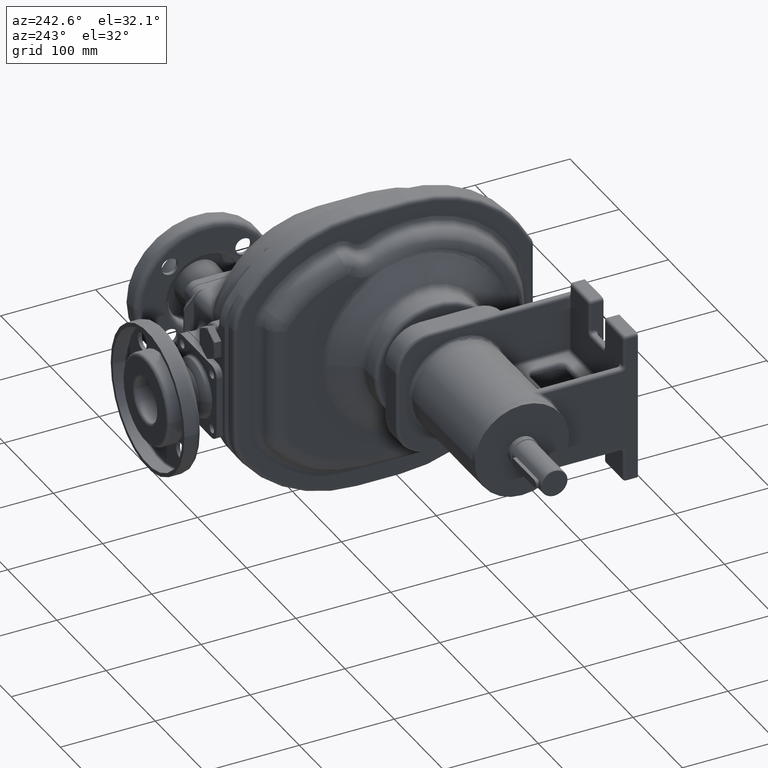
[diagram: clean part render]
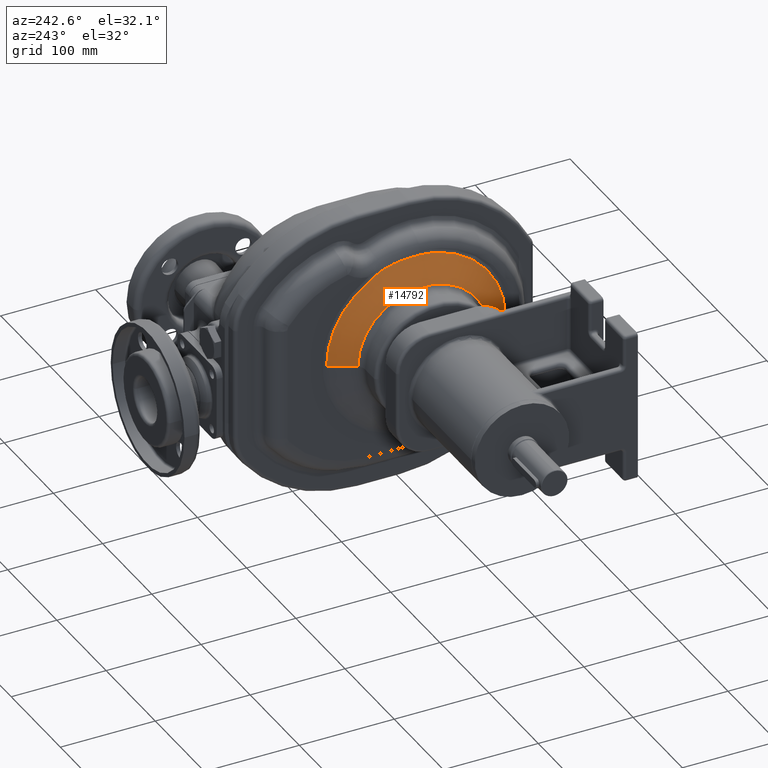
[diagram: same view with one face highlighted and labeled with its STEP entity id]
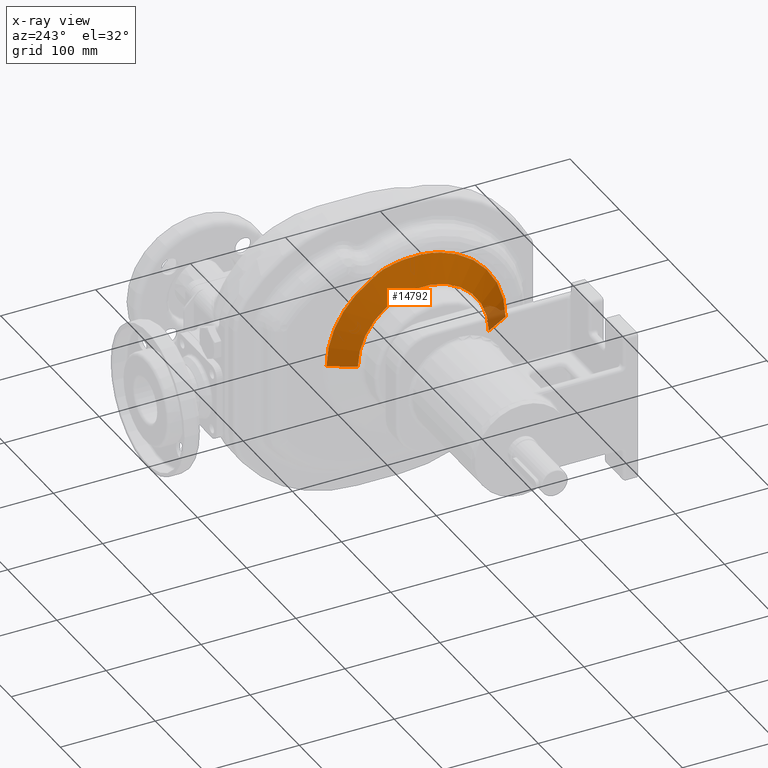
[diagram: x-ray of the same camera — body ghosted, the highlighted face saturated]
A machine part, auxiliary view. The second image highlights one B-rep face of the part: STEP entity #14792.
The next image is the same camera in x-ray: the body ghosted, the highlighted face saturated — about 4% of this face is hidden behind the body in this view.
In plain terms, the highlighted conical surface has half-angle 60 deg.
Its self-contained STEP definition (entity closure, byte-faithful):
#2554=CARTESIAN_POINT('',(-5.857179676972E1,0.E0,0.E0));
#2555=DIRECTION('',(-1.E0,0.E0,0.E0));
#2556=DIRECTION('',(0.E0,-1.E0,0.E0));
#2557=AXIS2_PLACEMENT_3D('',#2554,#2555,#2556);
#2559=DIRECTION('',(5.E-1,-8.660254037844E-1,0.E0));
#2560=VECTOR('',#2559,2.923760430703E1);
#2561=CARTESIAN_POINT('',(-7.319059892324E1,-6.9E1,0.E0));
#2562=LINE('',#2561,#2560);
#2563=CARTESIAN_POINT('',(-7.319059892324E1,0.E0,0.E0));
#2564=DIRECTION('',(-1.E0,0.E0,0.E0));
#2565=DIRECTION('',(0.E0,-1.E0,0.E0));
#2566=AXIS2_PLACEMENT_3D('',#2563,#2564,#2565);
#2568=DIRECTION('',(5.E-1,8.660254037844E-1,0.E0));
#2569=VECTOR('',#2568,2.923760430703E1);
#2570=CARTESIAN_POINT('',(-7.319059892324E1,6.9E1,-1.532106161659E-14));
#2571=LINE('',#2570,#2569);
#2572=CARTESIAN_POINT('',(-5.857179676972E1,0.E0,0.E0));
#2573=DIRECTION('',(-1.E0,0.E0,0.E0));
#2574=DIRECTION('',(0.E0,5.064865958433E-1,8.622478345761E-1));
#2575=AXIS2_PLACEMENT_3D('',#2572,#2573,#2574);
#2577=CARTESIAN_POINT('',(-5.797321898222E1,3.409199745411E1,8.905473399093E1));
#2578=CARTESIAN_POINT('',(-5.796771888854E1,3.432222820155E1,8.897679753114E1));
#2579=CARTESIAN_POINT('',(-5.795974008885E1,3.477692185466E1,8.881552792429E1));
#2580=CARTESIAN_POINT('',(-5.795684807256E1,3.543452921726E1,8.856058687747E1));
#2581=CARTESIAN_POINT('',(-5.796274317931E1,3.608816287932E1,8.828525656342E1));
#2582=CARTESIAN_POINT('',(-5.797781789658E1,3.675363439215E1,8.798208876978E1));
#2583=CARTESIAN_POINT('',(-5.800304354998E1,3.745070367238E1,8.764029792535E1));
#2584=CARTESIAN_POINT('',(-5.804040749042E1,3.820855620156E1,8.724226016483E1));
#2585=CARTESIAN_POINT('',(-5.809341975599E1,3.906807181628E1,8.676058753291E1));
#2586=CARTESIAN_POINT('',(-5.816341384515E1,4.003990317231E1,8.618340318497E1));
#2587=CARTESIAN_POINT('',(-5.824829408098E1,4.112792590012E1,8.550704529096E1));
#2588=CARTESIAN_POINT('',(-5.834273571739E1,4.233580305806E1,8.473397603267E1));
#2589=CARTESIAN_POINT('',(-5.843763359571E1,4.369350020092E1,8.385649983954E1));
#2590=CARTESIAN_POINT('',(-5.850229460424E1,4.486442437460E1,8.310721311772E1));
#2591=CARTESIAN_POINT('',(-5.854388029386E1,4.590485871922E1,8.245413080014E1));
#2592=CARTESIAN_POINT('',(-5.856700564766E1,4.686664608387E1,8.186476082275E1));
#2593=CARTESIAN_POINT('',(-5.857179671291E1,4.747659370011E1,8.150121928430E1));
#2594=CARTESIAN_POINT('',(-5.857179676972E1,4.777207305346E1,8.132765384438E1));
#2596=CARTESIAN_POINT('',(-5.845427179862E1,-4.317303522948E0,
9.442542130497E1));
#2597=CARTESIAN_POINT('',(-5.845036776947E1,-3.617483892196E0,
9.446418735955E1));
#2598=CARTESIAN_POINT('',(-5.844222572822E1,-2.215500715743E0,
9.452679870517E1));
#2599=CARTESIAN_POINT('',(-5.842893827837E1,-1.065056974506E-1,
9.457574526170E1));
#2600=CARTESIAN_POINT('',(-5.841449638263E1,2.007879713936E0,9.457954344817E1));
#2601=CARTESIAN_POINT('',(-5.839881398877E1,4.127006342407E0,9.453801605841E1));
#2602=CARTESIAN_POINT('',(-5.838179759509E1,6.250313193343E0,9.445098599826E1));
#2603=CARTESIAN_POINT('',(-5.836334594467E1,8.377238677385E0,9.431827326783E1));
#2604=CARTESIAN_POINT('',(-5.834334847377E1,1.050728661147E1,9.413969057143E1));
#2605=CARTESIAN_POINT('',(-5.832168411407E1,1.264000972944E1,9.391503899489E1));
#2606=CARTESIAN_POINT('',(-5.829821952251E1,1.477503078915E1,9.364410167746E1));
#2607=CARTESIAN_POINT('',(-5.827280702021E1,1.691205296932E1,9.332663639773E1));
#2608=CARTESIAN_POINT('',(-5.824528197107E1,1.905087864664E1,9.296236578282E1));
#2609=CARTESIAN_POINT('',(-5.821545952498E1,2.119143004653E1,9.255096542126E1));
#2610=CARTESIAN_POINT('',(-5.818313026132E1,2.333378635592E1,9.209204531448E1));
#2611=CARTESIAN_POINT('',(-5.814805562383E1,2.547817049470E1,9.158514184572E1));
#2612=CARTESIAN_POINT('',(-5.810995823597E1,2.762514965125E1,9.102965182335E1));
#2613=CARTESIAN_POINT('',(-5.806851753531E1,2.977539350584E1,9.042487223004E1));
#2614=CARTESIAN_POINT('',(-5.802335029324E1,3.193017495213E1,8.976984966080E1));
#2615=CARTESIAN_POINT('',(-5.799044577412E1,3.337089326639E1,8.929883824692E1));
#2616=CARTESIAN_POINT('',(-5.797321898222E1,3.409199745411E1,8.905473399093E1));
#2618=CARTESIAN_POINT('',(-5.857179676972E1,-4.238761411277E1,
8.425941142379E1));
#2619=CARTESIAN_POINT('',(-5.857179678162E1,-4.176475318284E1,
8.457274834127E1));
#2620=CARTESIAN_POINT('',(-5.857156761846E1,-4.051226894692E1,
8.518595959895E1));
#2621=CARTESIAN_POINT('',(-5.857053606116E1,-3.861407531140E1,
8.606498647443E1));
#2622=CARTESIAN_POINT('',(-5.856881775254E1,-3.669737414935E1,
8.690277765944E1));
#2623=CARTESIAN_POINT('',(-5.856641497795E1,-3.476313027571E1,
8.769891528316E1));
#2624=CARTESIAN_POINT('',(-5.856333152308E1,-3.281228612836E1,
8.845301679531E1));
#2625=CARTESIAN_POINT('',(-5.855957250497E1,-3.084581693081E1,
8.916471247851E1));
#2626=CARTESIAN_POINT('',(-5.855514454774E1,-2.886470226824E1,
8.983365761737E1));
#2627=CARTESIAN_POINT('',(-5.855005572707E1,-2.686993071963E1,
9.045953041485E1));
#2628=CARTESIAN_POINT('',(-5.854431565359E1,-2.486250266509E1,
9.104203137508E1));
#2629=CARTESIAN_POINT('',(-5.853793547402E1,-2.284342540372E1,
9.158088502602E1));
#2630=CARTESIAN_POINT('',(-5.853092791373E1,-2.081371594984E1,
9.207583922972E1));
#2631=CARTESIAN_POINT('',(-5.852330729422E1,-1.877439769385E1,
9.252666623625E1));
#2632=CARTESIAN_POINT('',(-5.851508955814E1,-1.672650293686E1,
9.293316227117E1));
#2633=CARTESIAN_POINT('',(-5.850629229513E1,-1.467106780396E1,
9.329514871910E1));
#2634=CARTESIAN_POINT('',(-5.849693472105E1,-1.260913673502E1,
9.361247141410E1));
#2635=CARTESIAN_POINT('',(-5.848703780806E1,-1.054176010028E1,
9.388500130788E1));
#2636=CARTESIAN_POINT('',(-5.847662400111E1,-8.469982335450E0,
9.411263613947E1));
#2637=CARTESIAN_POINT('',(-5.846571776128E1,-6.394875121212E0,
9.429529597258E1));
#2638=CARTESIAN_POINT('',(-5.845813597290E1,-5.009974875953E0,
9.438705113345E1));
#2639=CARTESIAN_POINT('',(-5.845427179862E1,-4.317303522948E0,
9.442542130497E1));
#10462=CARTESIAN_POINT('',(-7.319059892324E1,-6.9E1,0.E0));
#10464=VERTEX_POINT('',#10462);
#10466=CARTESIAN_POINT('',(-7.319059892324E1,6.9E1,-2.219207644230E-14));
#10468=VERTEX_POINT('',#10466);
#10469=CARTESIAN_POINT('',(-5.857179676972E1,9.432050807569E1,
-1.155091470765E-14));
#10470=CARTESIAN_POINT('',(-5.857179676972E1,-9.432050807569E1,0.E0));
#10471=VERTEX_POINT('',#10469);
#10472=VERTEX_POINT('',#10470);
#10473=CARTESIAN_POINT('',(-5.857179676972E1,-4.238761411280E1,
8.425941142377E1));
#10474=VERTEX_POINT('',#10473);
#10475=CARTESIAN_POINT('',(-5.857179676972E1,4.777207305346E1,
8.132765384438E1));
#10476=VERTEX_POINT('',#10475);
#10555=VERTEX_POINT('',#2639);
#10556=VERTEX_POINT('',#2616);
#14776=CARTESIAN_POINT('',(-6.557437150212E1,0.E0,0.E0));
#14777=DIRECTION('',(1.E0,0.E0,0.E0));
#14778=DIRECTION('',(0.E0,-1.E0,0.E0));
#14779=AXIS2_PLACEMENT_3D('',#14776,#14777,#14778);
#14780=CONICAL_SURFACE('',#14779,8.219169285538E1,6.E1);
#14781=ORIENTED_EDGE('',*,*,#14504,.F.);
#14782=ORIENTED_EDGE('',*,*,#14487,.F.);
#14783=ORIENTED_EDGE('',*,*,#14459,.T.);
#14784=ORIENTED_EDGE('',*,*,#14484,.T.);
#14785=ORIENTED_EDGE('',*,*,#14501,.F.);
#14787=ORIENTED_EDGE('',*,*,#14786,.F.);
#14788=ORIENTED_EDGE('',*,*,#14668,.F.);
#14789=ORIENTED_EDGE('',*,*,#14770,.F.);
#14790=EDGE_LOOP('',(#14781,#14782,#14783,#14784,#14785,#14787,#14788,#14789));
#14791=FACE_OUTER_BOUND('',#14790,.F.);
#14792=ADVANCED_FACE('',(#14791),#14780,.T.);
#2558=CIRCLE('',#2557,9.432050807569E1);
#2567=CIRCLE('',#2566,6.9E1);
#2576=CIRCLE('',#2575,9.432050807569E1);
#2595=B_SPLINE_CURVE_WITH_KNOTS('',3,(#2577,#2578,#2579,#2580,#2581,#2582,#2583,
#2584,#2585,#2586,#2587,#2588,#2589,#2590,#2591,#2592,#2593,#2594),
.UNSPECIFIED.,.F.,.F.,(4,1,1,1,1,1,1,1,1,1,1,1,1,1,1,4),(0.E0,6.666666666667E-2,
1.333333333333E-1,2.E-1,2.666666666667E-1,3.333333333333E-1,4.E-1,
4.666666666667E-1,5.333333333333E-1,6.E-1,6.666666666667E-1,7.333333333333E-1,
8.E-1,8.666666666667E-1,9.333333333333E-1,1.E0),.UNSPECIFIED.);
#2617=B_SPLINE_CURVE_WITH_KNOTS('',3,(#2596,#2597,#2598,#2599,#2600,#2601,#2602,
#2603,#2604,#2605,#2606,#2607,#2608,#2609,#2610,#2611,#2612,#2613,#2614,#2615,
#2616),.UNSPECIFIED.,.F.,.F.,(4,1,1,1,1,1,1,1,1,1,1,1,1,1,1,1,1,1,4),(0.E0,
5.555555555556E-2,1.111111111111E-1,1.666666666667E-1,2.222222222222E-1,
2.777777777778E-1,3.333333333333E-1,3.888888888889E-1,4.444444444444E-1,5.E-1,
5.555555555556E-1,6.111111111111E-1,6.666666666667E-1,7.222222222222E-1,
7.777777777778E-1,8.333333333333E-1,8.888888888889E-1,9.444444444444E-1,1.E0),
.UNSPECIFIED.);
#2640=B_SPLINE_CURVE_WITH_KNOTS('',3,(#2618,#2619,#2620,#2621,#2622,#2623,#2624,
#2625,#2626,#2627,#2628,#2629,#2630,#2631,#2632,#2633,#2634,#2635,#2636,#2637,
#2638,#2639),.UNSPECIFIED.,.F.,.F.,(4,1,1,1,1,1,1,1,1,1,1,1,1,1,1,1,1,1,1,4),(
0.E0,5.263157894737E-2,1.052631578947E-1,1.578947368421E-1,2.105263157895E-1,
2.631578947368E-1,3.157894736842E-1,3.684210526316E-1,4.210526315789E-1,
4.736842105263E-1,5.263157894737E-1,5.789473684211E-1,6.315789473684E-1,
6.842105263158E-1,7.368421052632E-1,7.894736842105E-1,8.421052631579E-1,
8.947368421053E-1,9.473684210526E-1,1.E0),.UNSPECIFIED.);
#14459=EDGE_CURVE('',#10464,#10468,#2567,.T.);
#14484=EDGE_CURVE('',#10468,#10471,#2571,.T.);
#14487=EDGE_CURVE('',#10464,#10472,#2562,.T.);
#14501=EDGE_CURVE('',#10476,#10471,#2576,.T.);
#14504=EDGE_CURVE('',#10472,#10474,#2558,.T.);
#14668=EDGE_CURVE('',#10555,#10556,#2617,.T.);
#14770=EDGE_CURVE('',#10474,#10555,#2640,.T.);
#14786=EDGE_CURVE('',#10556,#10476,#2595,.T.);